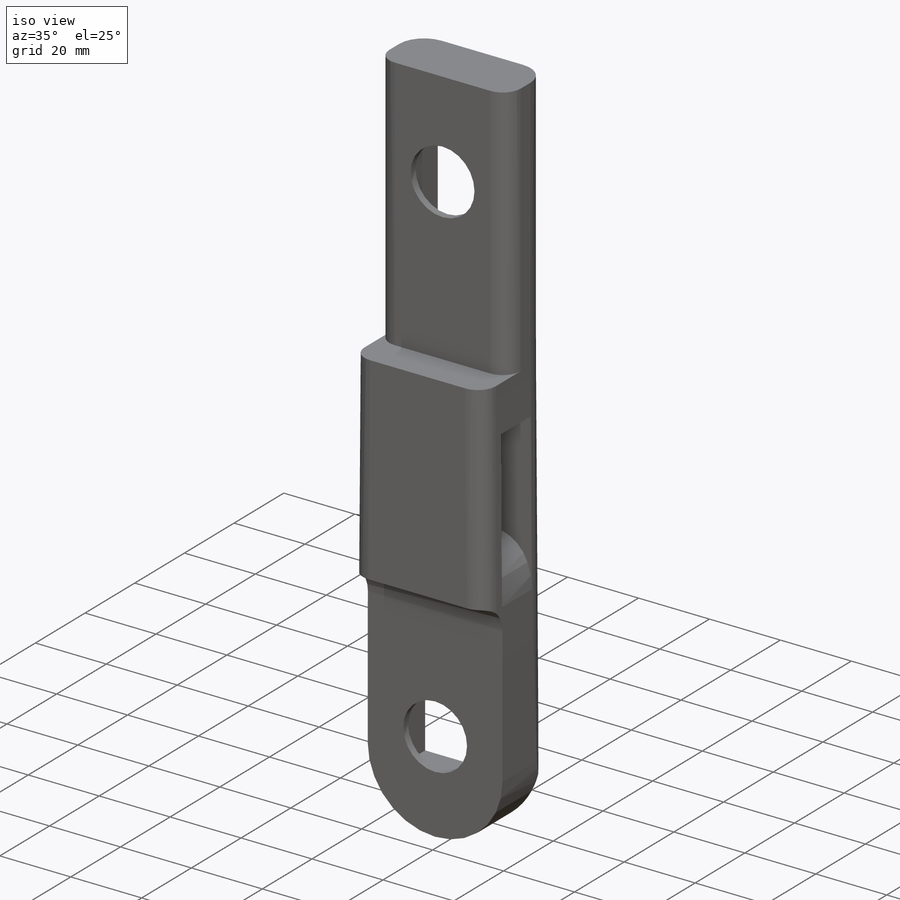
[diagram: iso view]
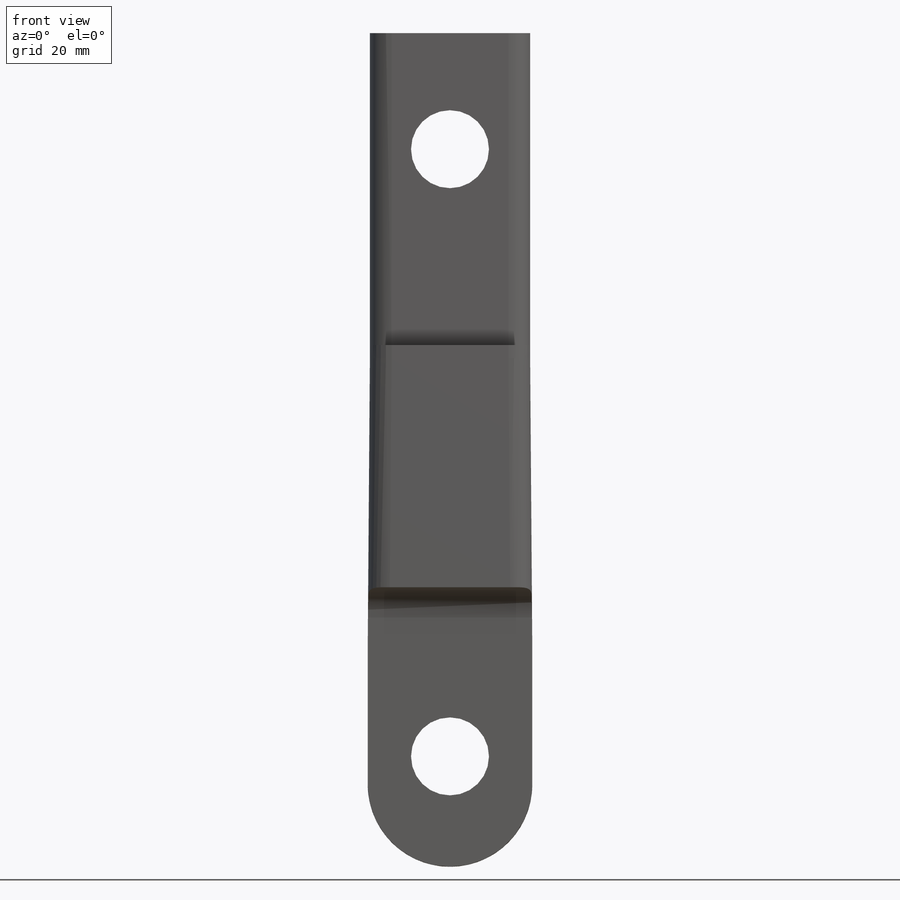
[diagram: front view]
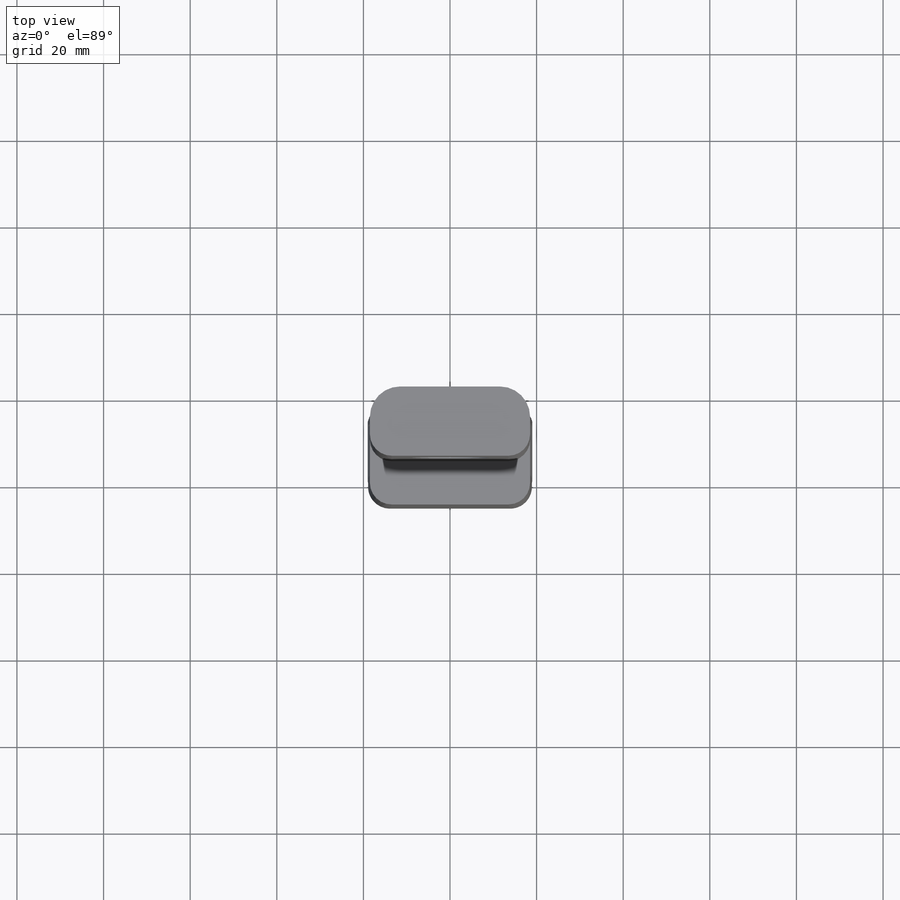
[diagram: top view]
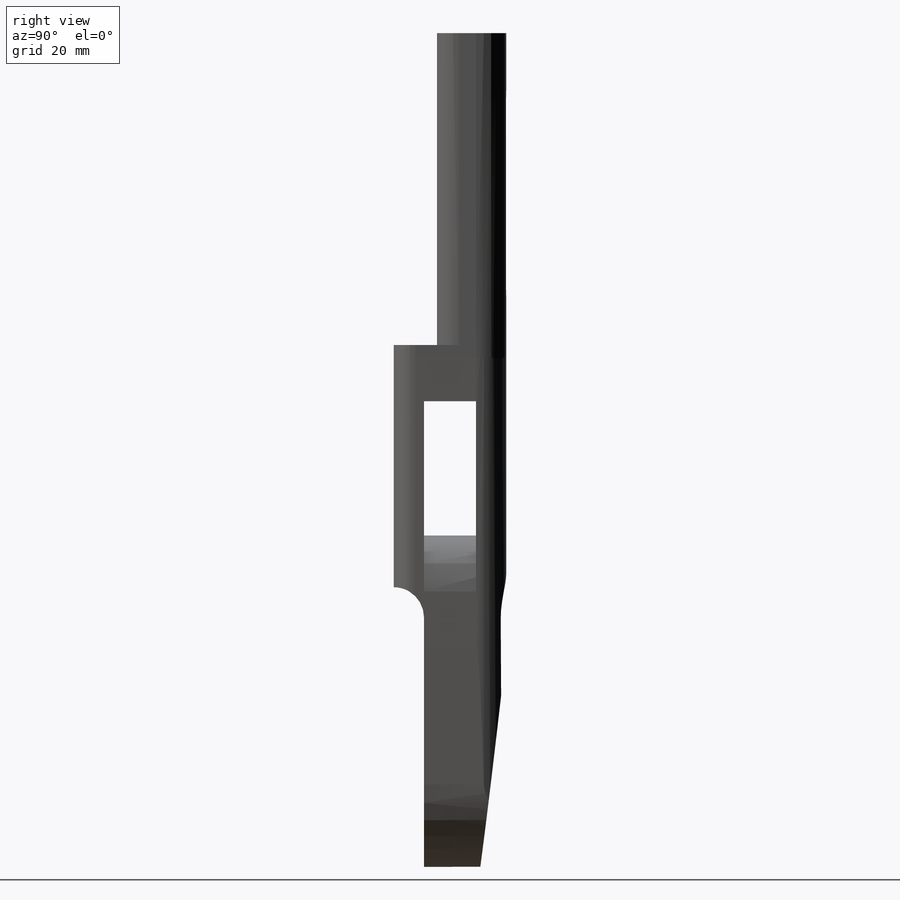
[diagram: right view]
SOLIDWORKS PART (.sldprt)
format: sldprt  version: not decoded by parser v0  size: 823,296 bytes
history: native  units: mm
features: sketch x15, cut_extrude x13, fillet x8, plane x4, material x1, extrude x1 (+10 scaffold rows collapsed)
feature tree (52):
  scaffold x10  (default folders/planes/origin — collapsed)
  material  "Malzeme <belirli değil>"
  plane  "Ön Düzlem"
  plane  "Üst Düzlem"
  plane  "Sağ Düzlem"
  sketch  "Çizim1"  dims[c1.D1=38.0mm c1.D2=32.0mm c1.D4=32.0mm c1.D9=18.0mm c1.D10=2.6mm c1.D11=2.6mm c1.D16=2.6mm c1.D17=2.6mm c1.D3=15.0mm c1.D5=21.0mm c1.D6=8.5mm c1.D7=41.0mm c1.D8=21.0mm c2.D5=21.0mm c2.D8=10.5mm c2.D12=10.0mm c2.D13=5.0mm c2.D14=3.5mm c2.D15=15.0mm c2.D18=10.0mm c2.D19=5.0mm c3.D15=3.5mm c3.D19=5.0mm c3.D20=~5.678876mm c4.D19=5.0mm c4.D20=10.0mm c4.D2=192.5mm c4.D3=75.0mm c4.D4=37.0mm c4.D5=18.5mm c4.D6=75.0mm]
  extrude  "Yükseklik-Ekstrüzyon2"  Depth=26mm
  sketch  "Çizim4"  dims[D1=10.0mm D2=72.0mm]
  cut_extrude  "Kes-Ekstrüzyon1"  Depth=26mm
  sketch  "Çizim5"  dims[c1.D1=10.0mm c1.D2=31.0mm c1.D3=12.0mm c1.D4=6.5mm c1.D5=6.5mm c2.D1=7.0mm c2.D2=31.0mm]
  cut_extrude  "Kes-Ekstrüzyon2"  Depth=26mm
  plane  "Düzlem1"
  sketch  "Çizim6"  dims[D2=~18.949099mm D1=0.0mm]
  cut_extrude  "Kes-Ekstrüzyon7"  Depth=12mm
  sketch  "Çizim9"  dims[D1=6.0mm]
  cut_extrude  "Kes-Ekstrüzyon8"  Depth=23mm
  fillet  "Radyus1"  Radius=10mm
  fillet  "Radyus2"  Radius=10mm
  sketch  "Çizim10"
  cut_extrude  "Kes-Ekstrüzyon9"  Depth=8mm
  sketch  "Çizim11"
  cut_extrude  "Kes-Ekstrüzyon10"  Depth=17mm
  sketch  "Çizim12"
  cut_extrude  "Kes-Ekstrüzyon11"  Depth=19mm
  sketch  "Çizim13"
  cut_extrude  "Kes-Ekstrüzyon12"  Depth=15mm
  sketch  "Çizim14"  dims[c1.D1=25.0mm c1.D2=25.0mm c2.D2=41.0mm]
  sketch  "Çizim15"  dims[D1=4.0mm D2=41.0mm]
  cut_extrude  "Kes-Ekstrüzyon13"  Depth=3mm
  sketch  "Çizim16"  dims[c1.D1=25.0mm c1.D2=25.0mm c2.D2=41.0mm]
  cut_extrude  "Kes-Ekstrüzyon14"  Depth=11mm
  sketch  "Çizim17"  dims[D2=18.0mm D1=10.25mm]
  cut_extrude  "Kes-Ekstrüzyon15"  Depth=16mm
  sketch  "Çizim18"  dims[D1=3.5mm D2=3.5mm]
  cut_extrude  "Kes-Ekstrüzyon16"  Depth=12mm
  fillet  "Radyus9"  Radius=7mm
  fillet  "Radyus11"  Radius=5mm
  fillet  "Radyus12"  Radius=5mm
  fillet  "Radyus13"  Radius=7mm
  fillet  "Radyus14"  Radius=5mm
  fillet  "Radyus15"  Radius=5mm
  sketch  "Çizim19"  dims[D1=50.0mm D2=6.0mm]
  cut_extrude  "Kes-Ekstrüzyon18"  Depth=23mm
decode coverage: 33 of 37 modeling features carry decoded parameters
note: ~ marks probable driven/reference dimensions
note: suppression state not decoded; provenance and decode notes live in map.json
